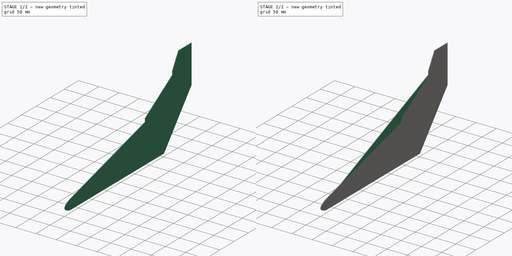
[diagram: build sequence overview — one tinted view per stage of 2, left to right]
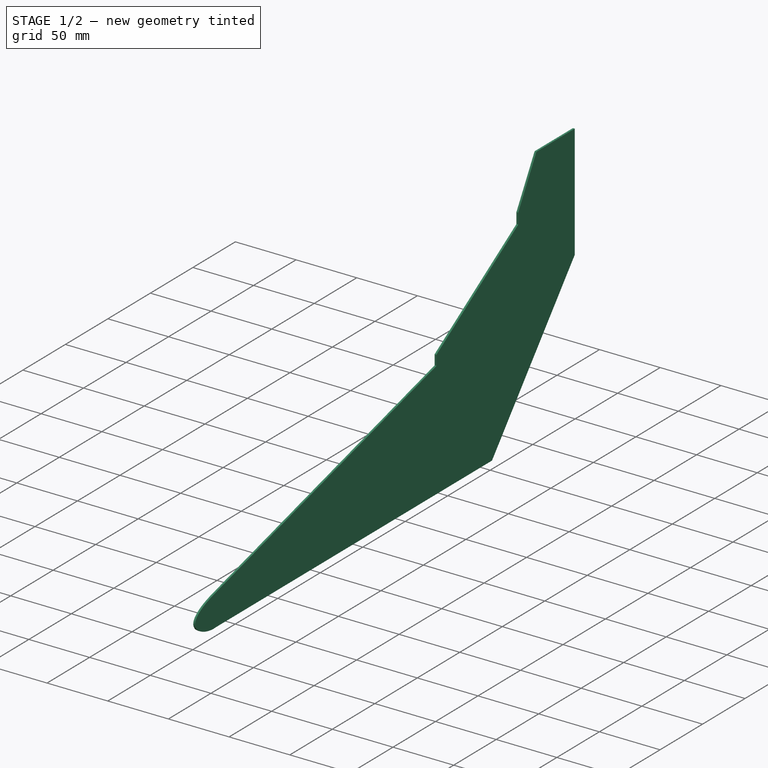
[diagram: stage 1 of 2 — iso view after this stage's code; geometry added in this stage tinted green]
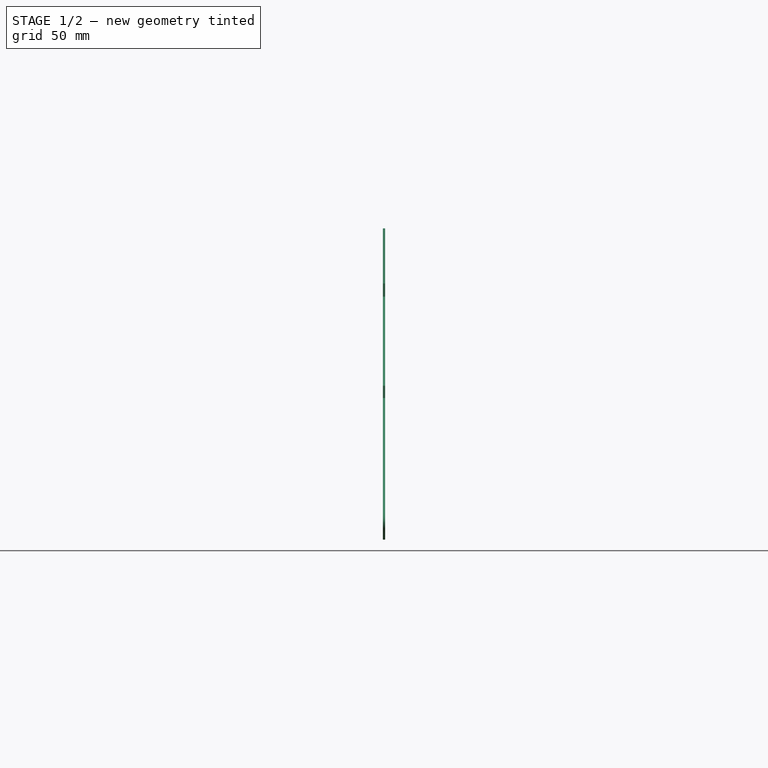
[diagram: stage 1 of 2 — front view after this stage's code; geometry added in this stage tinted green]
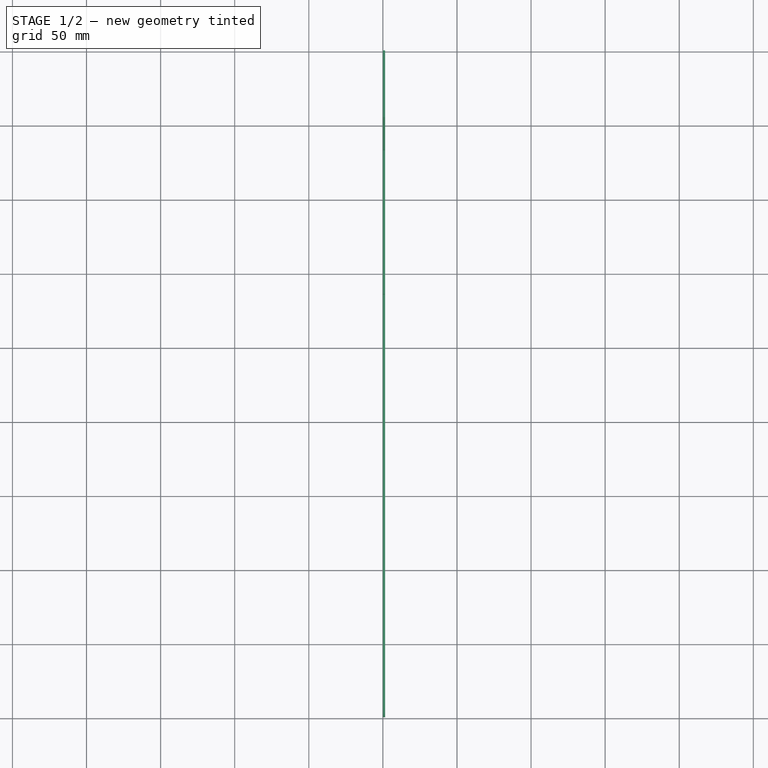
[diagram: stage 1 of 2 — top view after this stage's code; geometry added in this stage tinted green]
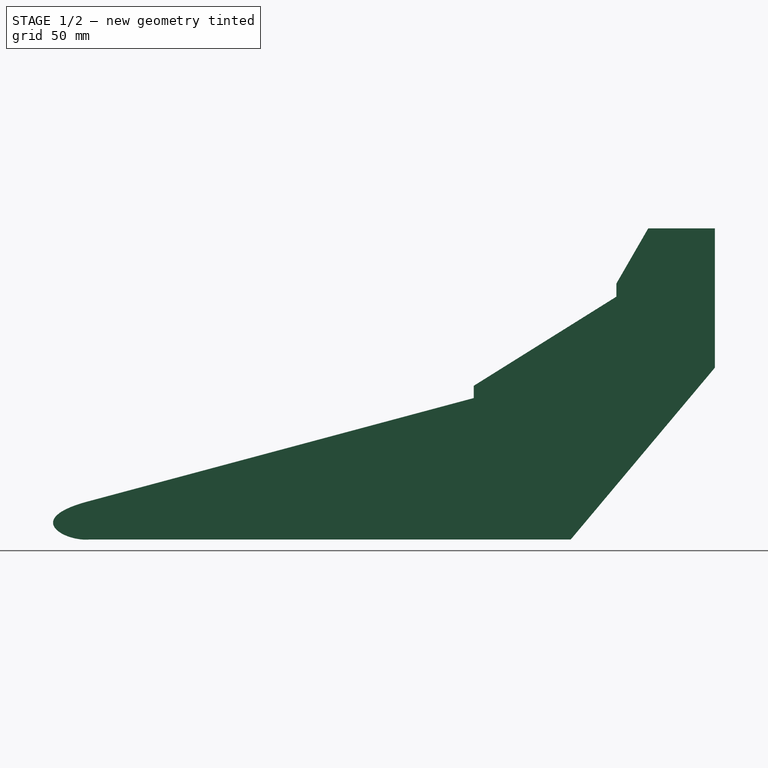
[diagram: stage 1 of 2 — right view after this stage's code; geometry added in this stage tinted green]
FCSTD DOCUMENT  (FreeCAD 0.18R16146 (Git))
Label: SeitenteilAussen
License: All rights reserved
LicenseURL: http://en.wikipedia.org/wiki/All_rights_reserved
objects: Sketcher::SketchObject×2, PartDesign::Pad×2, PartDesign::Plane×1, PartDesign::Body×1
note: 8 computed .brp shape members not serialized (recipe doc carries the construction recipe); baked Part::Feature solids carry a one-line shape summary decoded from their .brp

FEATURE [Sketcher::SketchObject] Sketch
  MapMode = 5
  Placement = pos=(0,0,0) rot=(0.57735,0.57735,0.57735;2.0944rad)
  Support = -> [YZ_Plane]
  sketch-geometry (27):
    g0: LineSegment [constr] StartX=33.31 StartY=102.952 StartZ=0 EndX=130.836 EndY=163.893 EndZ=0
    g1: LineSegment [constr] StartX=-178.654 StartY=39.8812 StartZ=0 EndX=33.8496 EndY=96.8214 EndZ=0
    g2: LineSegment [constr] StartX=33.8496 StartY=96.8214 StartZ=0 EndX=34.2378 EndY=95.3725 EndZ=0
    g3: LineSegment [constr] StartX=34.2378 StartY=95.3725 StartZ=0 EndX=-178.266 EndY=38.4323 EndZ=0
    g4: LineSegment [constr] StartX=-178.266 StartY=38.4323 StartZ=0 EndX=-178.654 EndY=39.8812 EndZ=0
    g5: LineSegment [constr] StartX=36.6527 StartY=96.0195 StartZ=0 EndX=34.5821 EndY=103.747 EndZ=0
    g6: LineSegment [constr] StartX=34.5821 StartY=103.747 StartZ=0 EndX=36.5139 EndY=104.265 EndZ=0
    g7: LineSegment [constr] StartX=36.5139 StartY=104.265 StartZ=0 EndX=39.1021 EndY=94.6053 EndZ=0
    g8: LineSegment [constr] StartX=39.1021 StartY=94.6053 StartZ=0 EndX=29.4429 EndY=92.0171 EndZ=0
    g9: LineSegment [constr] StartX=29.4429 StartY=92.0171 StartZ=0 EndX=28.9252 EndY=93.949 EndZ=0
    g10: LineSegment [constr] StartX=28.9252 StartY=93.949 StartZ=0 EndX=36.6527 EndY=96.0195 EndZ=0
    g11: LineSegment StartX=-225 StartY=0 StartZ=0 EndX=100 EndY=0 EndZ=0
    g12: LineSegment StartX=100 StartY=0 StartZ=0 EndX=197.336 EndY=116 EndZ=0
    g13: LineSegment StartX=197.336 StartY=116 StartZ=0 EndX=197.336 EndY=210 EndZ=0
    g14: LineSegment StartX=197.336 StartY=210 StartZ=0 EndX=152.336 EndY=210 EndZ=0
    g15: LineSegment StartX=130.836 StartY=163.893 StartZ=0 EndX=34.5821 EndY=103.747 EndZ=0
    g16-g19: Circle [constr] x4 (B-spline internal-alignment scaffolding for g20; pole/knot coordinates omitted)
    g20: BSplineCurve PolesCount=4 KnotsCount=2 Degree=3 IsPeriodic=0
    g21: GeomPoint [constr] X=-225 Y=0 Z=0
    g22: GeomPoint [constr] X=-226.199 Y=25.5886 Z=0
    g23: LineSegment StartX=34.5821 StartY=103.747 StartZ=0 EndX=34.5821 EndY=95.4647 EndZ=0
    g24: LineSegment StartX=34.5821 StartY=95.4647 StartZ=0 EndX=-226.199 EndY=25.5886 EndZ=0
    g25: LineSegment StartX=130.836 StartY=163.893 StartZ=0 EndX=130.836 EndY=172.761 EndZ=0
    g26: LineSegment StartX=130.836 StartY=172.761 StartZ=0 EndX=152.336 EndY=210 EndZ=0
  constraints (74):
    c: Distance(g0) = 115
    c: Angle(g-1,g0) = 0.558505
    c: Distance(g1) = 220
    c: Coincident(g2,g3)
    c: Coincident(g3,g4)
    c: Coincident(g4,g1)
    c: Parallel(g1,g3)
    c: Parallel(g4,g2)
    c: Perpendicular(g1,g2)
    c: Distance(g4) = 1.5
    c: Coincident(g5,g6)
    c: Coincident(g6,g7)
    c: Coincident(g7,g8)
    c: Coincident(g8,g9)
    c: Coincident(g9,g10)
    c: Coincident(g5,g10)
    c: Parallel(g6,g10)
    c: Parallel(g10,g8)
    c: Parallel(g9,g5)
    c: Parallel(g5,g7)
    c: Distance(g6) = 2
    c: Equal(g6,g9)
    c: Equal(g8,g7)
    c: Perpendicular(g10,g5)
    c: Distance(g7) = 10
    c: Parallel(g1,g10)
    c: Coincident(g2,g1)
    c: PointOnObject(g2,g10)
    c: Distance(g2,g5) = 2.5
    c: PointOnObject(g5,g0)
    c: Distance(g5,g0) = 1.5
    c: Angle(g-1,g3) = 0.261799
    c: Horizontal(g11)
    c: Coincident(g11,g12)
    c: Coincident(g12,g13)
    c: Vertical(g13)
    c: Coincident(g13,g14)
    c: Horizontal(g14)
    c: Coincident(g15,g5)
    c: Coincident(g20,g11)
    c: Radius(g16) = 3
    c: Equal(g16,g17)
    c: Equal(g16,g18)
    c: Equal(g16,g19)
    c: InternalAlignment(g16-g19 -> g20) x4
    c: InternalAlignment(g21,g20)
    c: InternalAlignment(g22,g20)
    c: Coincident(g24,g23)
    c: Coincident(g20,g24)
    c: PointOnObject(g20,g3)
    c: Parallel(g24,g3)
    c: Vertical(g23)
    c: Coincident(g23,g5)
    c: PointOnObject(g15,g0)
    c: DistanceX(g11,g20) = -1.19908
    c: DistanceY(g11,g20) = 25.5886
    c: DistanceX(g17,g20) = 14.8153
    c: DistanceY(g17,g20) = 27.0505
    c: DistanceX(g18,g20) = 43.8227
    c: DistanceY(g18,g20) = 11.8456
    c: Distance(g15,g5) = 113.5
    c: Angle(g12,g-1) = 2.26893
    c: DistanceY(g-1,g13) = 210
    c: PointOnObject(g-1,g11)
    c: DistanceX(g14,g14) = 45
    c: DistanceX(g-1,g11) = 100
    c: Coincident(g15,g25)
    c: Vertical(g25)
    c: Coincident(g25,g26)
    c: Coincident(g26,g14)
    c: Distance(g26) = 43
    c: Angle(g26,g-1) = 2.0944
    c: DistanceY(g13,g13) = 94
    c: DistanceX(g11,g11) = 325
FEATURE [PartDesign::Pad] Pad  label="Blech"
  Length = 1.5
  Length2 = 100
  Placement = pos=(0,0,0) rot=(0.57735,0.57735,0.57735;2.0944rad)
  Profile = -> Sketch
  Type = 0
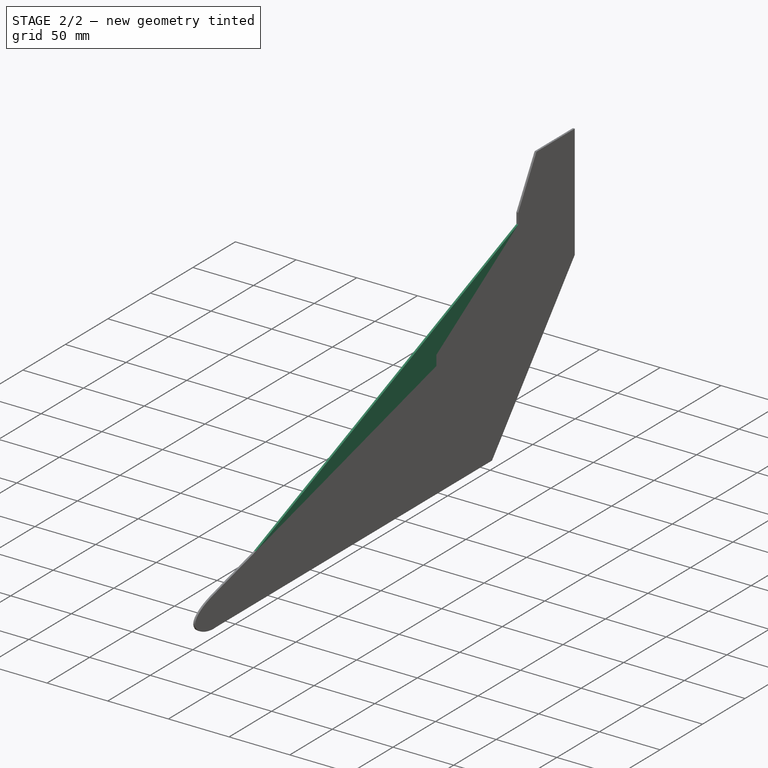
[diagram: stage 2 of 2 — iso view after this stage's code; geometry added in this stage tinted green]
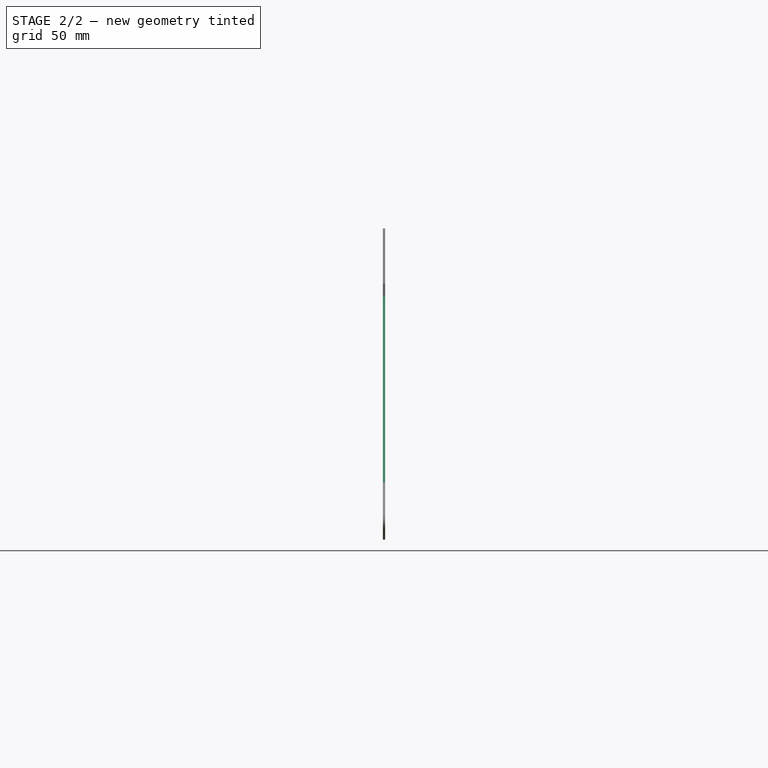
[diagram: stage 2 of 2 — front view after this stage's code; geometry added in this stage tinted green]
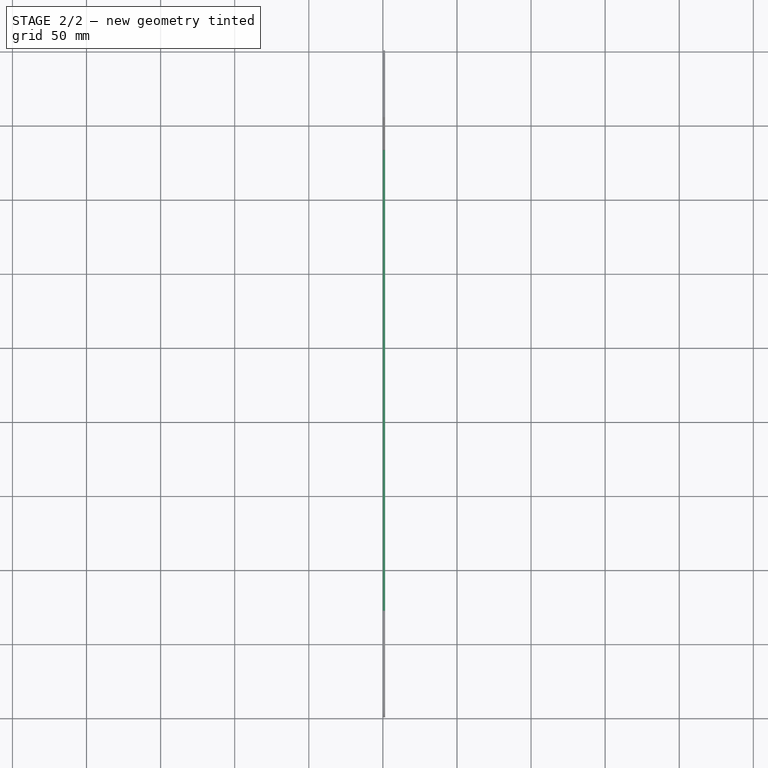
[diagram: stage 2 of 2 — top view after this stage's code; geometry added in this stage tinted green]
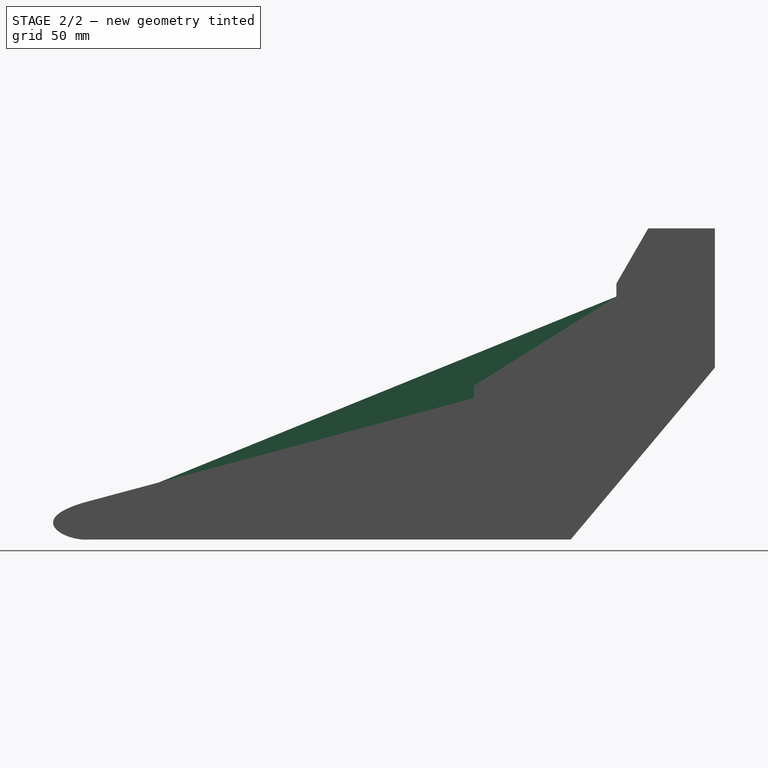
[diagram: stage 2 of 2 — right view after this stage's code; geometry added in this stage tinted green]
FEATURE [PartDesign::Plane] DatumPlane001  label="Seitenteil"
  Length = 282.693
  Placement = pos=(133.5,0,0) rot=(0,1,0;1.5708rad)
  ResizeMode = 0
  Width = 509.333
FEATURE [Sketcher::SketchObject] CopySketch003
  Placement = pos=(0,0,0) rot=(0.57735,0.57735,0.57735;2.0944rad)
  sketch-geometry (15):
    g0: LineSegment StartX=-225 StartY=0 StartZ=0 EndX=100 EndY=0 EndZ=0
    g1: LineSegment StartX=100 StartY=0 StartZ=0 EndX=197.336 EndY=116 EndZ=0
    g2: LineSegment StartX=197.336 StartY=116 StartZ=0 EndX=197.336 EndY=210 EndZ=0
    g3: LineSegment StartX=197.336 StartY=210 StartZ=0 EndX=152.336 EndY=210 EndZ=0
    g4-g7: Circle [constr] x4 (B-spline internal-alignment scaffolding for g8; pole/knot coordinates omitted)
    g8: BSplineCurve PolesCount=4 KnotsCount=2 Degree=3 IsPeriodic=0
    g9: GeomPoint [constr] X=-225 Y=0 Z=0
    g10: GeomPoint [constr] X=-226.199 Y=25.5886 Z=0
    g11: LineSegment StartX=130.836 StartY=163.99 StartZ=0 EndX=130.836 EndY=172.761 EndZ=0
    g12: LineSegment StartX=130.836 StartY=172.761 StartZ=0 EndX=152.336 EndY=210 EndZ=0
    g13: LineSegment StartX=130.836 StartY=163.99 StartZ=0 EndX=-177.903 EndY=38.5296 EndZ=0
    g14: LineSegment StartX=-177.903 StartY=38.5296 StartZ=0 EndX=-226.199 EndY=25.5886 EndZ=0
  constraints (37):
    c: Horizontal(g0)
    c: Coincident(g0,g1)
    c: Coincident(g1,g2)
    c: Vertical(g2)
    c: Coincident(g2,g3)
    c: Horizontal(g3)
    c: Coincident(g8,g0)
    c: Radius(g4) = 3
    c: Equal(g4,g5)
    c: Equal(g4,g6)
    c: Equal(g4,g7)
    c: InternalAlignment(g4-g7 -> g8) x4
    c: InternalAlignment(g9,g8)
    c: InternalAlignment(g10,g8)
    c: DistanceX(g0,g8) = -1.19908
    c: DistanceY(g0,g8) = 25.5886
    c: DistanceX(g5,g8) = 14.8153
    c: DistanceY(g5,g8) = 27.0505
    c: DistanceX(g6,g8) = 43.8227
    c: DistanceY(g6,g8) = 11.8456
    c: Angle(g1,g-1) = 2.26893
    c: DistanceY(g-1,g2) = 210
    c: PointOnObject(g-1,g0)
    c: DistanceX(g3,g3) = 45
    c: DistanceX(g-1,g0) = 100
    c: Vertical(g11)
    c: Coincident(g11,g12)
    c: Coincident(g12,g3)
    c: Distance(g12) = 43
    c: Angle(g12,g-1) = 2.0944
    c: DistanceY(g2,g2) = 94
    c: Coincident(g11,g13)
    c: Coincident(g13,g14)
    c: Coincident(g14,g8)
    c: Angle(g0,g14) = 0.261799
    c: Distance(g14) = 50
    c: DistanceX(g0,g0) = 325
FEATURE [PartDesign::Pad] Pad002
  BaseFeature = -> Pad
  Length = 1.5
  Length2 = 100
  Placement = pos=(0,0,0) rot=(0.57735,0.57735,0.57735;2.0944rad)
  Profile = -> CopySketch003
  Type = 0
FEATURE [PartDesign::Body] Body  label="SeitenteilAussen"
  Group = -> [Sketch,Pad,DatumPlane001,Pad002]
  Origin = -> Origin
  Tip = -> Pad002
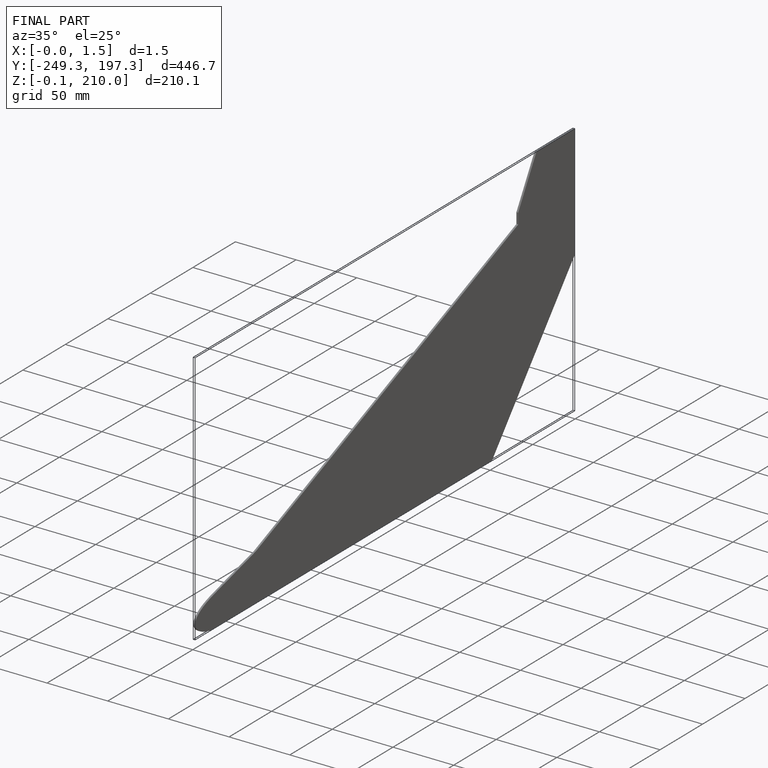
[diagram: finished part — iso view with bounding-box wireframe]
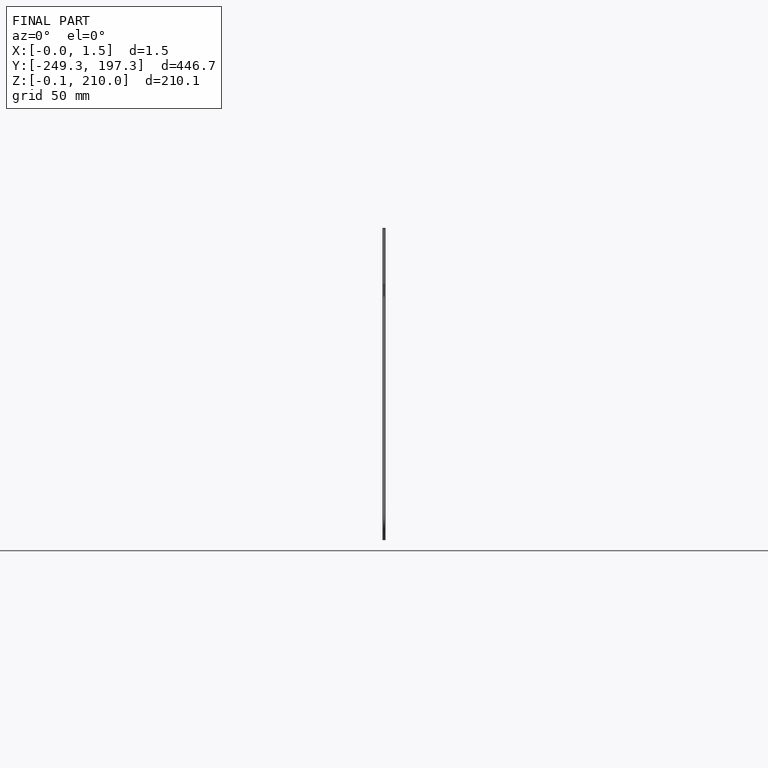
[diagram: finished part — front view with bounding-box wireframe]
